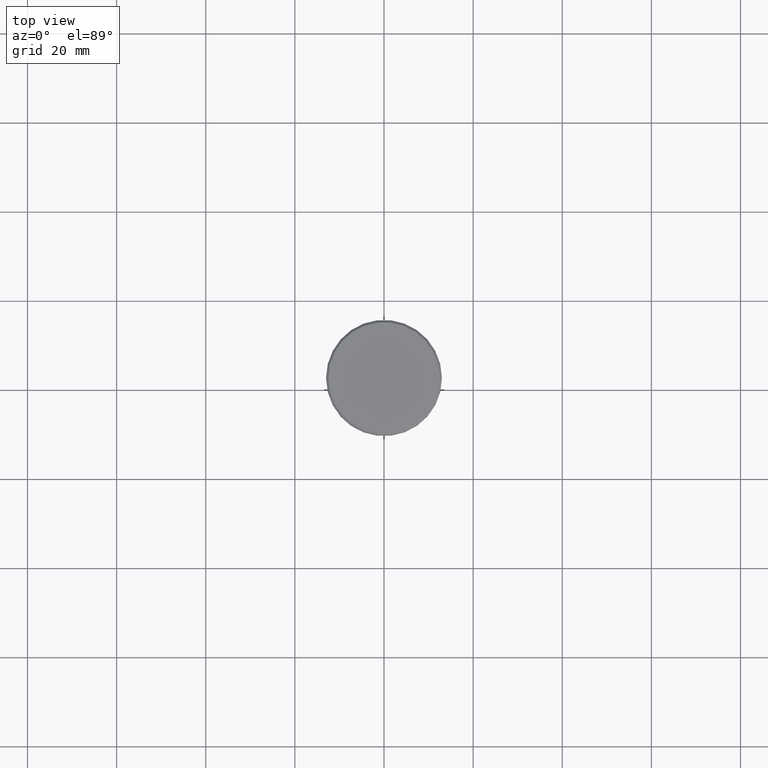
[diagram: clean part render]
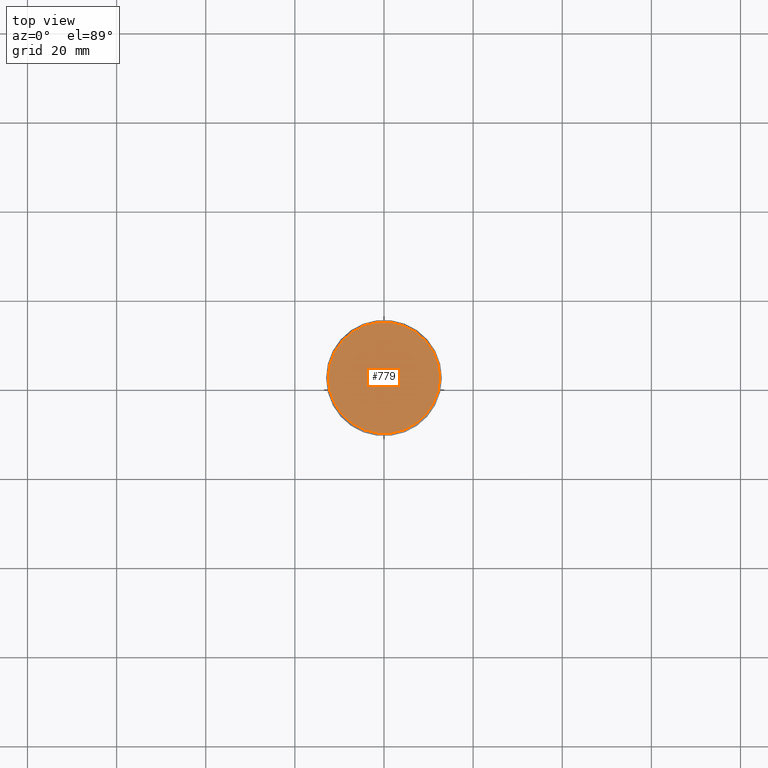
[diagram: same view with one face highlighted and labeled with its STEP entity id]
A machine part, top view. The second image highlights one B-rep face of the part: STEP entity #779.
In plain terms, the highlighted planar face has unit normal (0, -0, 1).
Its self-contained STEP definition (entity closure, byte-faithful):
#88 = PLANE ( 'NONE',  #915 ) ;
#248 = CARTESIAN_POINT ( 'NONE',  ( 0.000000000000000000, 0.000000000000000000, 0.000000000000000000 ) ) ;
#256 = DIRECTION ( 'NONE',  ( -0.000000000000000000, -0.000000000000000000, 1.000000000000000000 ) ) ;
#340 = VERTEX_POINT ( 'NONE', #430 ) ;
#363 = DIRECTION ( 'NONE',  ( 1.000000000000000000, 0.000000000000000000, 0.000000000000000000 ) ) ;
#381 = CARTESIAN_POINT ( 'NONE',  ( 0.000000000000000000, 0.000000000000000000, 0.000000000000000000 ) ) ;
#430 = CARTESIAN_POINT ( 'NONE',  ( 12.49999999999999645, 1.561424668912875111E-15, 0.000000000000000000 ) ) ;
#435 = AXIS2_PLACEMENT_3D ( 'NONE', #1175, #256, #363 ) ;
#446 = DIRECTION ( 'NONE',  ( 1.000000000000000000, 0.000000000000000000, 0.000000000000000000 ) ) ;
#505 = ORIENTED_EDGE ( 'NONE', *, *, #979, .T. ) ;
#689 = VERTEX_POINT ( 'NONE', #960 ) ;
#779 = ADVANCED_FACE ( 'NONE', ( #1071 ), #88, .T. ) ;
#844 = EDGE_CURVE ( 'NONE', #689, #340, #986, .T. ) ;
#888 = EDGE_LOOP ( 'NONE', ( #1153, #505 ) ) ;
#915 = AXIS2_PLACEMENT_3D ( 'NONE', #248, #1168, #446 ) ;
#917 = CIRCLE ( 'NONE', #1089, 12.49999999999999645 ) ;
#932 = DIRECTION ( 'NONE',  ( 1.000000000000000000, 0.000000000000000000, 0.000000000000000000 ) ) ;
#960 = CARTESIAN_POINT ( 'NONE',  ( -12.49999999999999645, 0.000000000000000000, 0.000000000000000000 ) ) ;
#979 = EDGE_CURVE ( 'NONE', #340, #689, #917, .T. ) ;
#986 = CIRCLE ( 'NONE', #435, 12.49999999999999645 ) ;
#1071 = FACE_OUTER_BOUND ( 'NONE', #888, .T. ) ;
#1089 = AXIS2_PLACEMENT_3D ( 'NONE', #381, #1098, #932 ) ;
#1098 = DIRECTION ( 'NONE',  ( -0.000000000000000000, -0.000000000000000000, 1.000000000000000000 ) ) ;
#1153 = ORIENTED_EDGE ( 'NONE', *, *, #844, .T. ) ;
#1168 = DIRECTION ( 'NONE',  ( 0.000000000000000000, -0.000000000000000000, 1.000000000000000000 ) ) ;
#1175 = CARTESIAN_POINT ( 'NONE',  ( 0.000000000000000000, 0.000000000000000000, 0.000000000000000000 ) ) ;